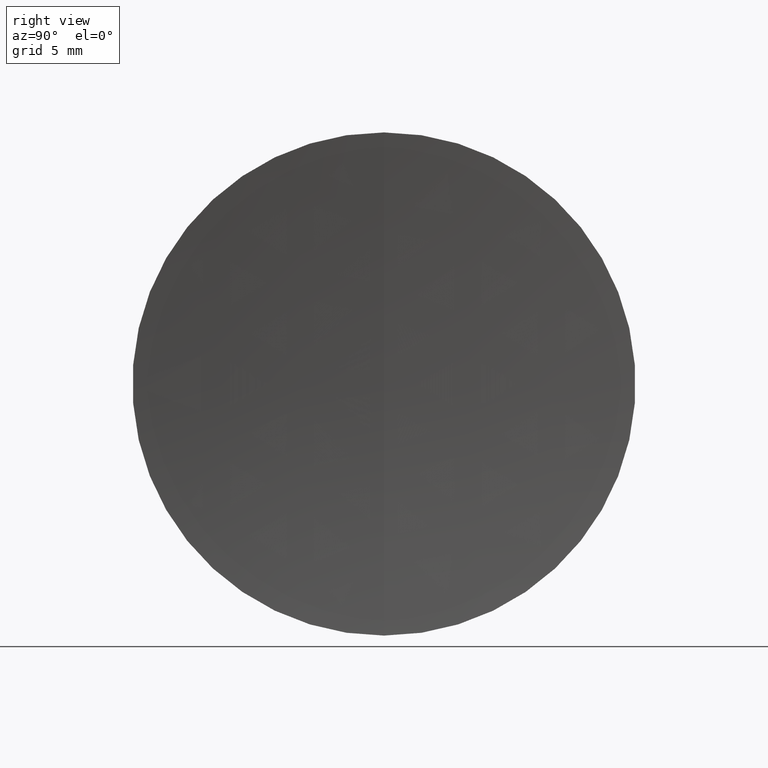
[diagram: clean part render]
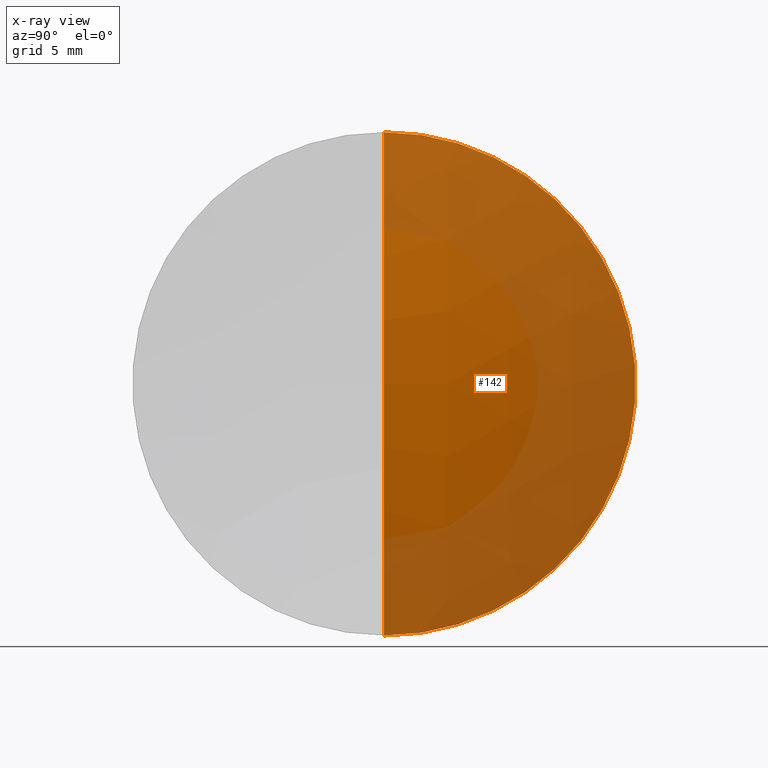
[diagram: x-ray — body ghosted, one internal face saturated and labeled with its STEP entity id]
A machine part, right view, then the same camera in x-ray: the body is ghosted and one INTERNAL B-rep face — a face not visible from any outside direction — is saturated and labeled: STEP entity #142.
In plain terms, the highlighted spherical surface has radius 47.5 mm.
Its self-contained STEP definition (entity closure, byte-faithful):
#9 = CARTESIAN_POINT ( 'NONE',  ( 51.59793110503332500, 1.555301434917138800E-015, -12.70000000000000300 ) ) ;
#12 = DIRECTION ( 'NONE',  ( 0.0000000000000000000, 1.000000000000000000, 0.0000000000000000000 ) ) ;
#31 = VERTEX_POINT ( 'NONE', #9 ) ;
#36 = CIRCLE ( 'NONE', #241, 47.50000000000009900 ) ;
#44 = EDGE_LOOP ( 'NONE', ( #65, #67, #121 ) ) ;
#47 = CIRCLE ( 'NONE', #315, 47.50000000000009900 ) ;
#65 = ORIENTED_EDGE ( 'NONE', *, *, #154, .F. ) ;
#67 = ORIENTED_EDGE ( 'NONE', *, *, #188, .T. ) ;
#68 = DIRECTION ( 'NONE',  ( 0.0000000000000000000, 0.0000000000000000000, 1.000000000000000000 ) ) ;
#69 = FACE_OUTER_BOUND ( 'NONE', #44, .T. ) ;
#83 = EDGE_CURVE ( 'NONE', #93, #31, #316, .T. ) ;
#93 = VERTEX_POINT ( 'NONE', #249 ) ;
#121 = ORIENTED_EDGE ( 'NONE', *, *, #83, .F. ) ;
#134 = VERTEX_POINT ( 'NONE', #344 ) ;
#142 = ADVANCED_FACE ( 'NONE', ( #69 ), #273, .T. ) ;
#152 = DIRECTION ( 'NONE',  ( 0.0000000000000000000, 0.0000000000000000000, -1.000000000000000000 ) ) ;
#154 = EDGE_CURVE ( 'NONE', #134, #93, #36, .T. ) ;
#155 = DIRECTION ( 'NONE',  ( -0.0000000000000000000, 1.000000000000000000, 1.224646799147353200E-016 ) ) ;
#185 = CARTESIAN_POINT ( 'NONE',  ( 51.59793110503332500, 0.0000000000000000000, 0.0000000000000000000 ) ) ;
#188 = EDGE_CURVE ( 'NONE', #134, #31, #47, .T. ) ;
#194 = AXIS2_PLACEMENT_3D ( 'NONE', #301, #12, #68 ) ;
#241 = AXIS2_PLACEMENT_3D ( 'NONE', #287, #293, #152 ) ;
#244 = DIRECTION ( 'NONE',  ( -1.000000000000000000, -0.0000000000000000000, -0.0000000000000000000 ) ) ;
#245 = DIRECTION ( 'NONE',  ( 0.0000000000000000000, 0.0000000000000000000, 1.000000000000000000 ) ) ;
#249 = CARTESIAN_POINT ( 'NONE',  ( 51.59793110503332500, 0.0000000000000000000, 12.70000000000000100 ) ) ;
#273 = SPHERICAL_SURFACE ( 'NONE', #194, 47.50000000000009900 ) ;
#275 = AXIS2_PLACEMENT_3D ( 'NONE', #185, #244, #245 ) ;
#287 = CARTESIAN_POINT ( 'NONE',  ( 5.827198098012243800, 0.0000000000000000000, -1.207122003785225600E-014 ) ) ;
#293 = DIRECTION ( 'NONE',  ( 0.0000000000000000000, -1.000000000000000000, 0.0000000000000000000 ) ) ;
#301 = CARTESIAN_POINT ( 'NONE',  ( 5.827198098012243800, 0.0000000000000000000, -1.207122003785225600E-014 ) ) ;
#305 = DIRECTION ( 'NONE',  ( 0.0000000000000000000, -1.224646799147353000E-016, 1.000000000000000000 ) ) ;
#315 = AXIS2_PLACEMENT_3D ( 'NONE', #340, #155, #305 ) ;
#316 = CIRCLE ( 'NONE', #275, 12.70000000000000100 ) ;
#340 = CARTESIAN_POINT ( 'NONE',  ( 5.827198098012243800, 0.0000000000000000000, -1.207122003785225600E-014 ) ) ;
#344 = CARTESIAN_POINT ( 'NONE',  ( 53.32719809801233900, 0.0000000000000000000, -9.162683889877284900E-015 ) ) ;